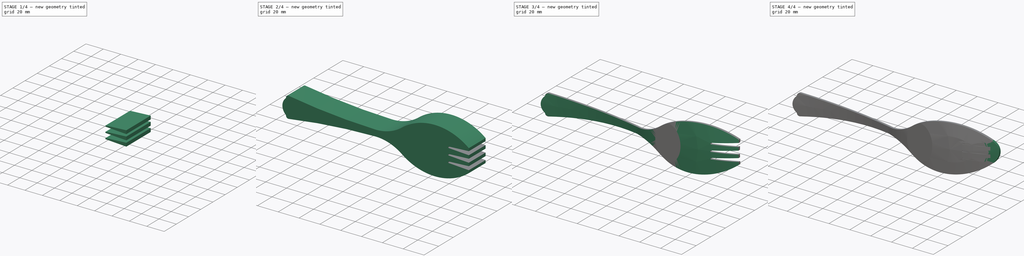
[diagram: build sequence overview — one tinted view per stage of 4, left to right]
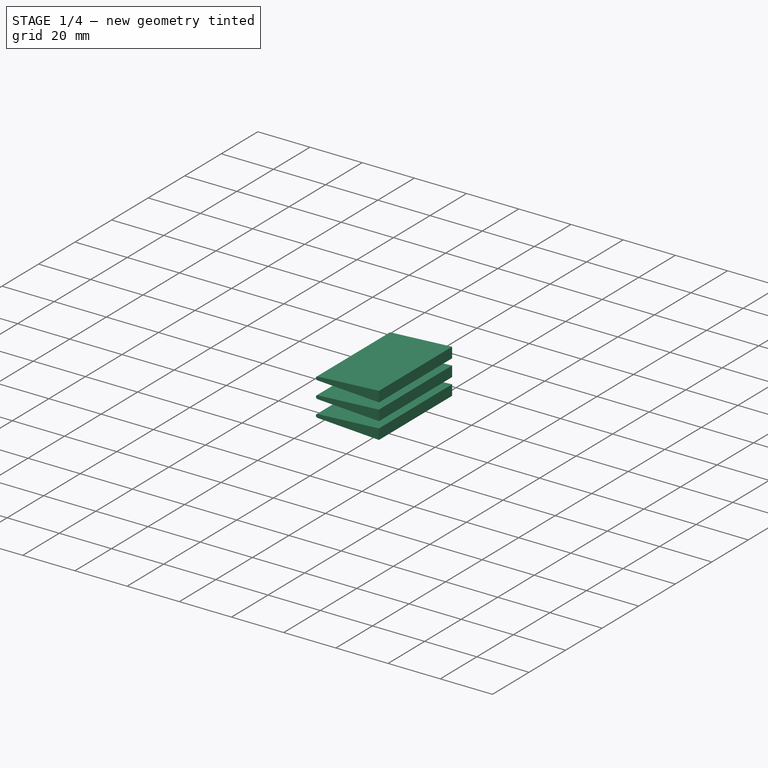
[diagram: stage 1 of 4 — iso view after this stage's code; geometry added in this stage tinted green]
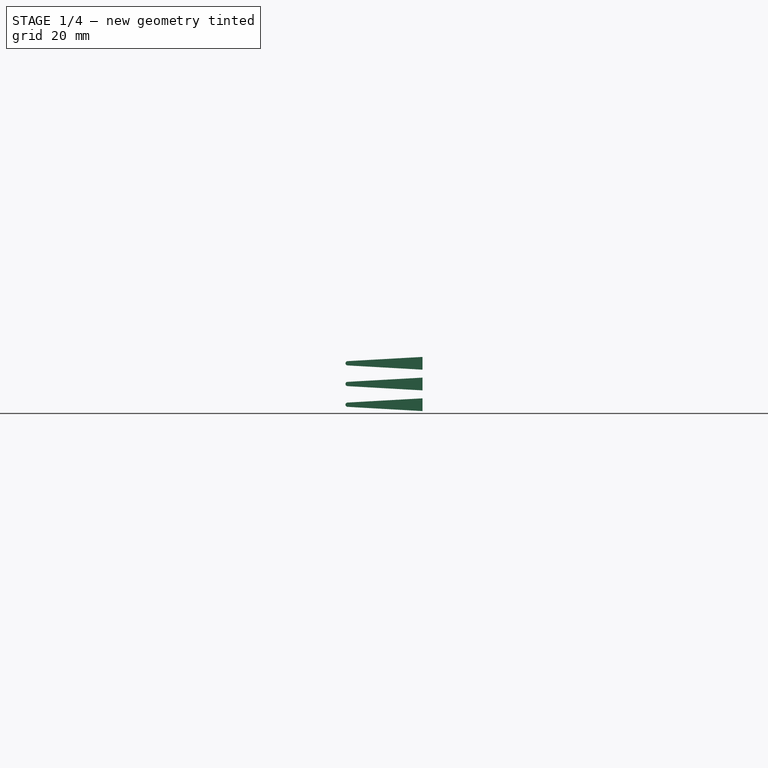
[diagram: stage 1 of 4 — front view after this stage's code; geometry added in this stage tinted green]
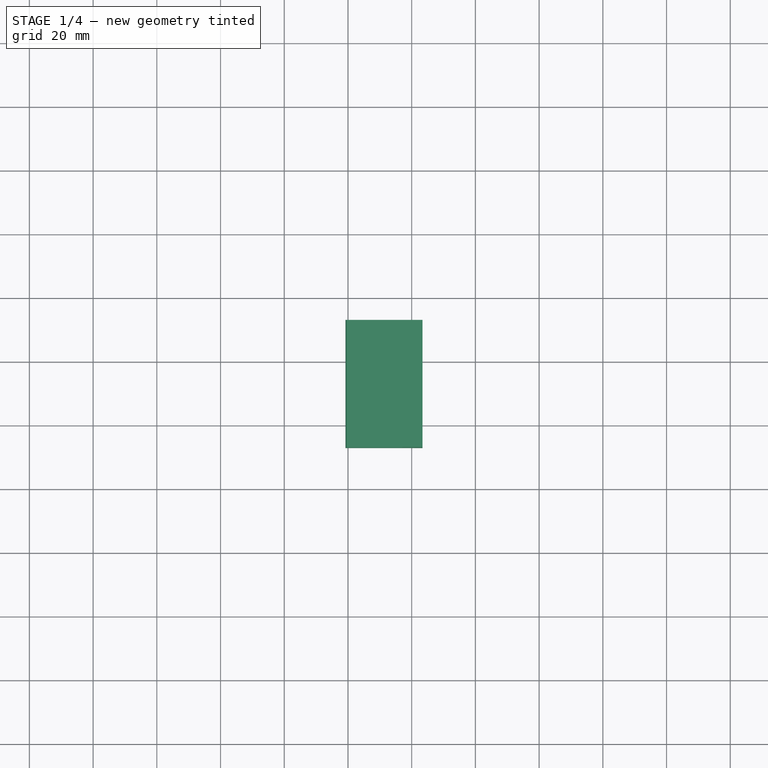
[diagram: stage 1 of 4 — top view after this stage's code; geometry added in this stage tinted green]
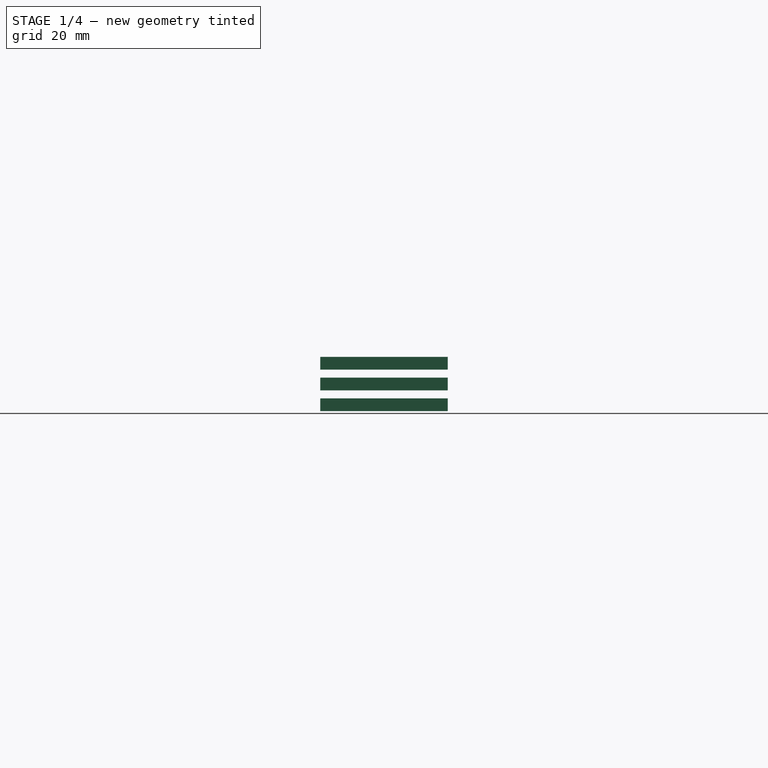
[diagram: stage 1 of 4 — right view after this stage's code; geometry added in this stage tinted green]
FCSTD DOCUMENT  (FreeCAD 0.20R29410 (Git))
Label: spoon
License: All rights reserved
LicenseURL: http://en.wikipedia.org/wiki/All_rights_reserved
objects: Part::Cut×6, Sketcher::SketchObject×4, Part::FeaturePython×3, Part::Extrusion×2, Part::Part2DObjectPython×1, Part::Loft×1, Part::Box×1, App::Part×1
note: 18 computed .brp shape members not serialized (recipe doc carries the construction recipe); baked Part::Feature solids carry a one-line shape summary decoded from their .brp

FEATURE [Sketcher::SketchObject] Sketch015  label="frontMid"
  FullyConstrained = false
  sketch-geometry (4):
    g0: GeomPoint X=135 Y=0 Z=0
    g1: ArcOfCircle CenterX=51.5539 CenterY=-176.213 CenterZ=0 NormalX=0 NormalY=0 NormalZ=1 AngleXU=0 Radius=185.066 StartAngle=1.36639 EndAngle=1.88135
    g2: ArcOfCircle CenterX=122.916 CenterY=99.2672 CenterZ=0 NormalX=0 NormalY=0 NormalZ=1 AngleXU=0 Radius=100 StartAngle=4.38846 EndAngle=5.60967
    g3: ArcOfCircle CenterX=85.6574 CenterY=-11.7032 CenterZ=0 NormalX=0 NormalY=0 NormalZ=1 AngleXU=0 Radius=17.0584 StartAngle=1.24687 EndAngle=1.36639
  constraints (10):
    c: PointOnObject(g0,g-1)
    c: PointOnObject(g1,g-1)
    c: DistanceX(g1) = -5
    c: DistanceY(g1) = 5
    c: DistanceX(g1,g1) = 94.12
    c: DistanceX(g1,g0) = 140
    c: PointOnObject(g0,g2)
    c: Radius(g2) = 100
    c: Tangent(g3,g2) = 1.5708
    c: Tangent(g3,g1) = -1.5708
FEATURE [Sketcher::SketchObject] Sketch016  label="back"
  AttachmentOffset = pos=(0,0,-35) rot=(0,0,1;0rad)
  ExternalGeometry = -> [Sketch015]
  FullyConstrained = false
  MapMode = 2
  Placement = pos=(0,0,-35) rot=(0,0,1;0rad)
  Support = -> [Sketch015]
  sketch-geometry (19):
    g0-g9: Circle x10 (B-spline internal-alignment scaffolding for g10; pole/knot coordinates omitted)
    g10: BSplineCurve PolesCount=10 KnotsCount=8 Degree=3 IsPeriodic=0
    g11-g18: GeomPoint x8 (B-spline internal-alignment scaffolding for g10; pole/knot coordinates omitted)
  constraints (3):
    c: Equal(g0, g1-g9) x9
    c: InternalAlignment(g0-g9 -> g10) x10
    c: InternalAlignment(g11-g18 -> g10) x8
FEATURE [Part::Part2DObjectPython] Clone2D001  label="front"  # Draft 2D object (typed FeaturePython)
  Fuse = false
  Objects = -> [Sketch016]
  Placement = pos=(0,0,35) rot=(0,0,1;0rad)
  Scale = (1,1,1)
FEATURE [Part::Loft] Loft001  label="Front"
  Closed = false
  MaxDegree = 5
  Ruled = false
  Sections = -> [Clone2D001,Sketch015,Sketch016]
  Solid = true
FEATURE [Sketcher::SketchObject] Sketch017  label="top"
  FullyConstrained = false
  MapMode = 5
  Placement = pos=(0,0,0) rot=(1,0,0;1.5708rad)
  sketch-geometry (14):
    g0: ArcOfCircle CenterX=97.8491 CenterY=-602.934 CenterZ=0 NormalX=0 NormalY=0 NormalZ=1 AngleXU=0 Radius=600 StartAngle=1.58563 EndAngle=1.72442
    g1: ArcOfCircle CenterX=97.8491 CenterY=602.934 CenterZ=0 NormalX=0 NormalY=0 NormalZ=1 AngleXU=0 Radius=600 StartAngle=4.55877 EndAngle=4.69755
    g2: GeomPoint X=88.9486 Y=0 Z=0
    g3: ArcOfCircle CenterX=5.70263 CenterY=7.83467 CenterZ=0 NormalX=0 NormalY=0 NormalZ=1 AngleXU=0 Radius=2.19113 StartAngle=1.41717 EndAngle=3.00995
    g4: ArcOfCircle CenterX=5.70263 CenterY=-7.83467 CenterZ=0 NormalX=0 NormalY=0 NormalZ=1 AngleXU=0 Radius=2.19113 StartAngle=3.27323 EndAngle=4.86601
    g5: ArcOfCircle CenterX=1.35828 CenterY=8.40989 CenterZ=0 NormalX=0 NormalY=0 NormalZ=1 AngleXU=0 Radius=2.19113 StartAngle=5.48444 EndAngle=6.15154
    g6: ArcOfCircle CenterX=1.35828 CenterY=-8.40989 CenterZ=0 NormalX=0 NormalY=0 NormalZ=1 AngleXU=0 Radius=2.19113 StartAngle=0.131641 EndAngle=0.798742
    g7: ArcOfCircle CenterX=9.54667 CenterY=-2.59e-14 CenterZ=0 NormalX=0 NormalY=0 NormalZ=1 AngleXU=0 Radius=9.54667 StartAngle=2.34285 EndAngle=3.94033
    g8: ArcOfCircle CenterX=89.5623 CenterY=44.3668 CenterZ=0 NormalX=0 NormalY=0 NormalZ=1 AngleXU=0 Radius=41.3714 StartAngle=4.69755 EndAngle=5.36719
    g9: ArcOfCircle CenterX=89.5623 CenterY=-44.3668 CenterZ=0 NormalX=0 NormalY=0 NormalZ=1 AngleXU=0 Radius=41.3714 StartAngle=0.916 EndAngle=1.58563
    g10: ArcOfCircle CenterX=171.537 CenterY=6.77e-14 CenterZ=0 NormalX=0 NormalY=0 NormalZ=1 AngleXU=0 Radius=13.1008 StartAngle=5.41476 EndAngle=7.15161
    g11: GeomPoint X=180 Y=6.92e-14 Z=0
    g12: ArcOfCircle CenterX=146.416 CenterY=-29.6808 CenterZ=0 NormalX=0 NormalY=0 NormalZ=1 AngleXU=0 Radius=51.985 StartAngle=0.868426 EndAngle=2.22559
    g13: ArcOfCircle CenterX=146.416 CenterY=29.6808 CenterZ=0 NormalX=0 NormalY=0 NormalZ=1 AngleXU=0 Radius=51.985 StartAngle=4.05759 EndAngle=5.41476
  constraints (31):
    c: Symmetric(g1,g0,g-1)
    c: DistanceY(g0,g1) = 20
    c: PointOnObject(g2,g-1)
    c: Vertical(g1,g0)
    c: DistanceY(g1) = 3
    c: Symmetric(g1,g0,g2)
    c: Radius(g0) = 600
    c: Radius(g1) = 600
    c: Tangent(g3,g1) = 1.5708
    c: Tangent(g0,g4) = 1.5708
    c: Equal(g3,g4)
    c: Tangent(g5,g3) = 1.5708
    c: Vertical(g4,g3)
    c: Tangent(g6,g4) = 1.5708
    c: PointOnObject(g-1,g7)
    c: Tangent(g6,g7) = 1.5708
    c: Tangent(g5,g7) = 1.5708
    c: Equal(g3,g5)
    c: Equal(g5,g6)
    c: Equal(g8,g9)
    c: Vertical(g8,g9)
    c: Vertical(g10,g10)
    c: DistanceY(g10,g10) = 20
    c: Symmetric(g10,g10,g11)
    c: Tangent(g8,g1) = -1.5708
    c: Tangent(g9,g0) = -1.5708
    c: DistanceX(g11) = 180
    c: Tangent(g10,g12) = -1.5708
    c: Tangent(g10,g13) = -1.5708
    c: Tangent(g13,g9) = 1.5708
    c: Tangent(g12,g8) = 1.5708
FEATURE [Part::Extrusion] Extrude  label="topExtruded"
  Base = -> Sketch017
  Dir = (0,-1,-2e-16)
  DirMode = 2
  FaceMakerClass = Part::FaceMakerBullseye
  LengthFwd = 23
  LengthRev = 0
  Reversed = true
  Solid = true
  Symmetric = false
FEATURE [Sketcher::SketchObject] Sketch
  ExternalGeometry = -> [Extrude]
  FullyConstrained = false
  MapMode = 5
  Placement = pos=(0,23,5.1e-15) rot=(0,0.707107,0.707107;3.14159rad)
  Support = -> [Extrude]
  sketch-geometry (5):
    g0: GeomPoint X=-177.986 Y=-6.245 Z=0
    g1: LineSegment StartX=-159.848 StartY=-2.89142 StartZ=0 EndX=-183.399 EndY=-1.56035 EndZ=0
    g2: ArcOfCircle CenterX=-159.886 CenterY=-3.56035 CenterZ=0 NormalX=0 NormalY=0 NormalZ=1 AngleXU=0 Radius=0.67 StartAngle=4.76885 EndAngle=7.79752
    g3: LineSegment StartX=-159.848 StartY=-4.22929 StartZ=0 EndX=-183.399 EndY=-5.56035 EndZ=0
    g4: LineSegment StartX=-183.399 StartY=-1.56035 StartZ=0 EndX=-183.399 EndY=-5.56035 EndZ=0
  constraints (9):
    c: Tangent(g2,g1) = -1.5708
    c: Radius(g2) = 0.67
    c: Tangent(g2,g3) = 1.5708
    c: Coincident(g4,g1)
    c: Coincident(g4,g3)
    c: Equal(g1,g3)
    c: PointOnObject(g3,g-4)
    c: DistanceY(g4,g4) = 4
    c: Vertical(g4)
FEATURE [Part::Extrusion] Extrude001
  Base = -> Sketch
  Dir = (0,1,2e-16)
  DirMode = 2
  FaceMakerClass = Part::FaceMakerBullseye
  LengthFwd = 40
  LengthRev = 0
  Placement = pos=(-1,-10,0) rot=(0,0,1;0rad)
  Reversed = true
  Solid = true
  Symmetric = true
FEATURE [Part::FeaturePython] Array  # Draft array (typed FeaturePython)
  AlwaysSyncPlacement = false
  Angle = 360
  ArrayType = 0
  Axis = (0,0,1)
  Base = -> Extrude001
  Center = (0,0,0)
  Count = 3
  ExpandArray = false
  Fuse = true
  IntervalAxis = (0,0,0)
  IntervalX = (100,0,0)
  IntervalY = (0,100,0)
  IntervalZ = (0,0,6.5)
  NumberCircles = 3
  NumberPolar = 5
  NumberX = 1
  NumberY = 1
  NumberZ = 3
  Placement = pos=(1,0,-3) rot=(0,0,1;0rad)
  PlacementList = 3 placements: arithmetic series from (-1,-10,0) step (0,0,6.5) to (-1,-10,13)
  RadialDistance = 50
  ScaleList = (3) [(1,1,1),(1,1,1),(1,1,1)]
  Symmetry = 1
  TangentialDistance = 25
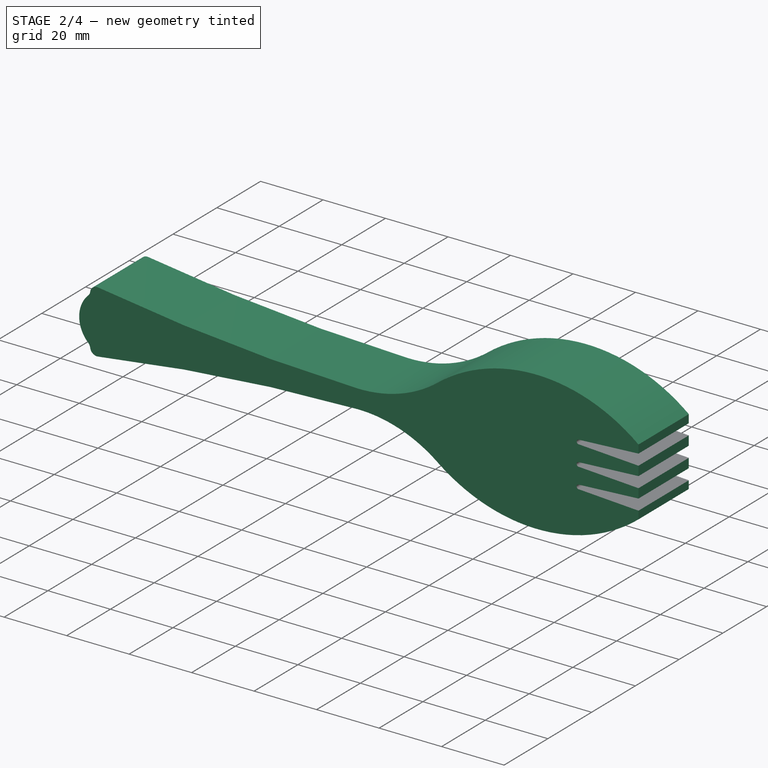
[diagram: stage 2 of 4 — iso view after this stage's code; geometry added in this stage tinted green]
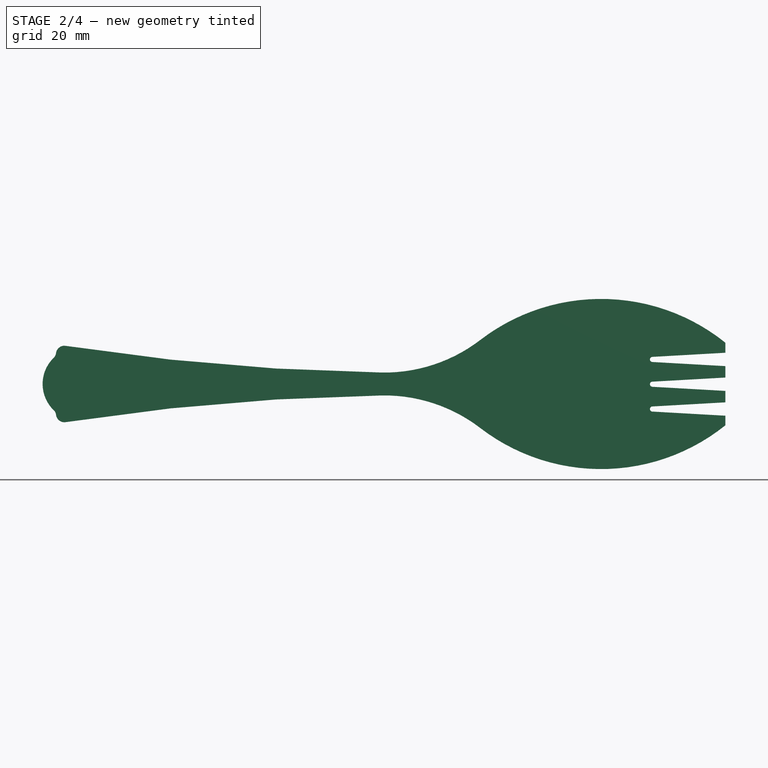
[diagram: stage 2 of 4 — front view after this stage's code; geometry added in this stage tinted green]
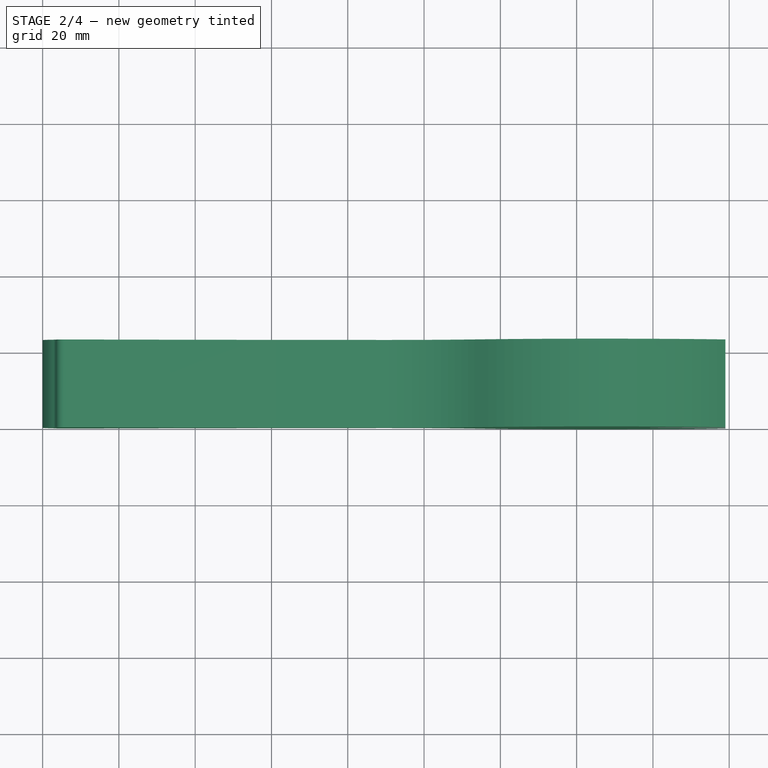
[diagram: stage 2 of 4 — top view after this stage's code; geometry added in this stage tinted green]
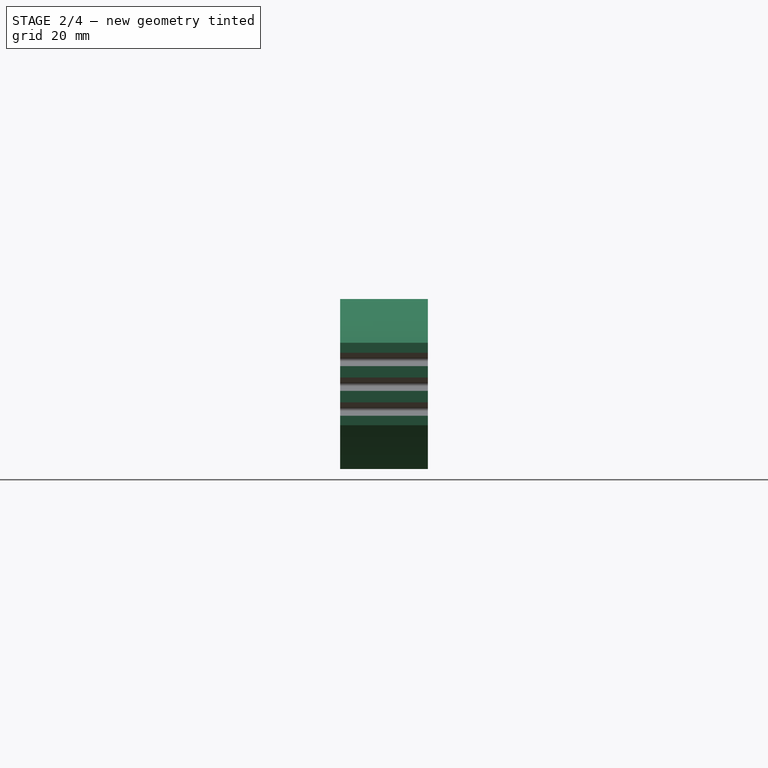
[diagram: stage 2 of 4 — right view after this stage's code; geometry added in this stage tinted green]
FEATURE [Part::Box] Box  label="Cube"
  AttacherType = Attacher::AttachEngine3D
  Height = 23
  Length = 10
  Placement = pos=(179,-5,-12) rot=(0,0,1;0rad)
  Width = 31
FEATURE [App::Part] Part001
  Group = -> [Clone2D001,Loft001,Sketch015,Sketch017,Sketch016,Extrude,Extrude001,Sketch,Cut001,Cut,Clone,Array,Box]
  Origin = -> Origin001
FEATURE [Part::Cut] Cut002
  Base = -> Extrude
  Refine = true
  Tool = -> Array
FEATURE [Part::Cut] Cut003  label="spoorkshape"
  Base = -> Cut002
  Refine = true
  Tool = -> Box
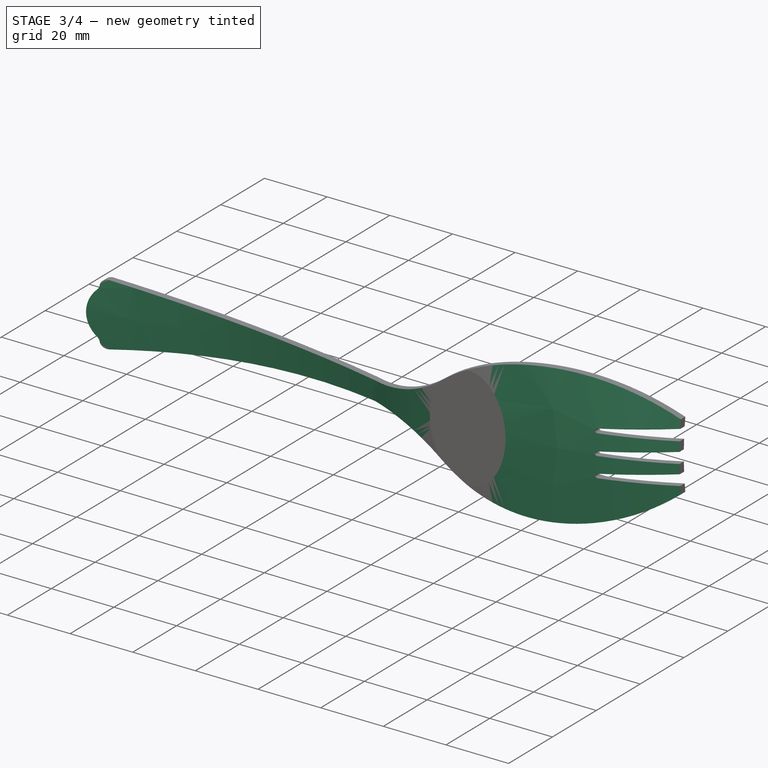
[diagram: stage 3 of 4 — iso view after this stage's code; geometry added in this stage tinted green]
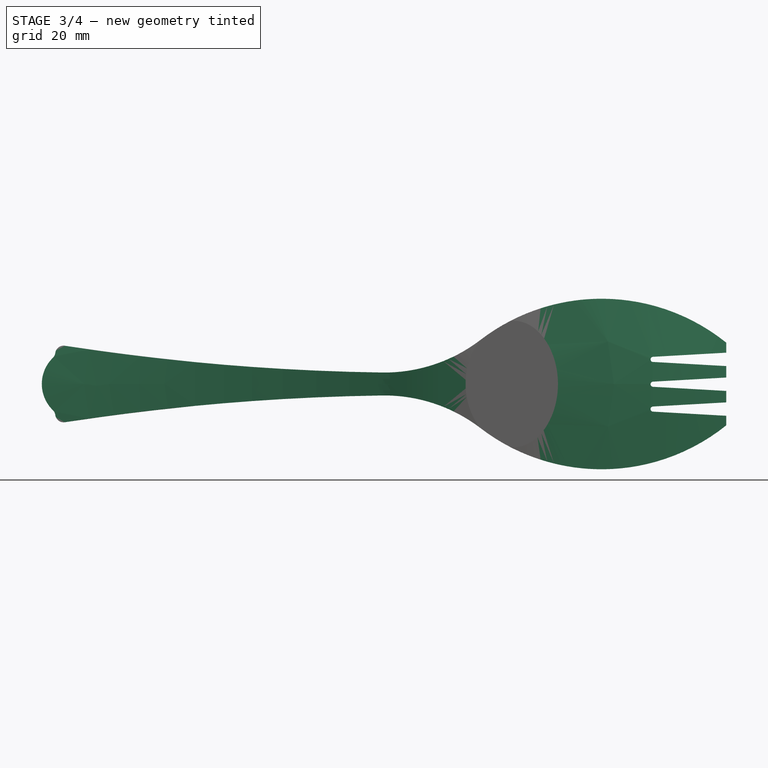
[diagram: stage 3 of 4 — front view after this stage's code; geometry added in this stage tinted green]
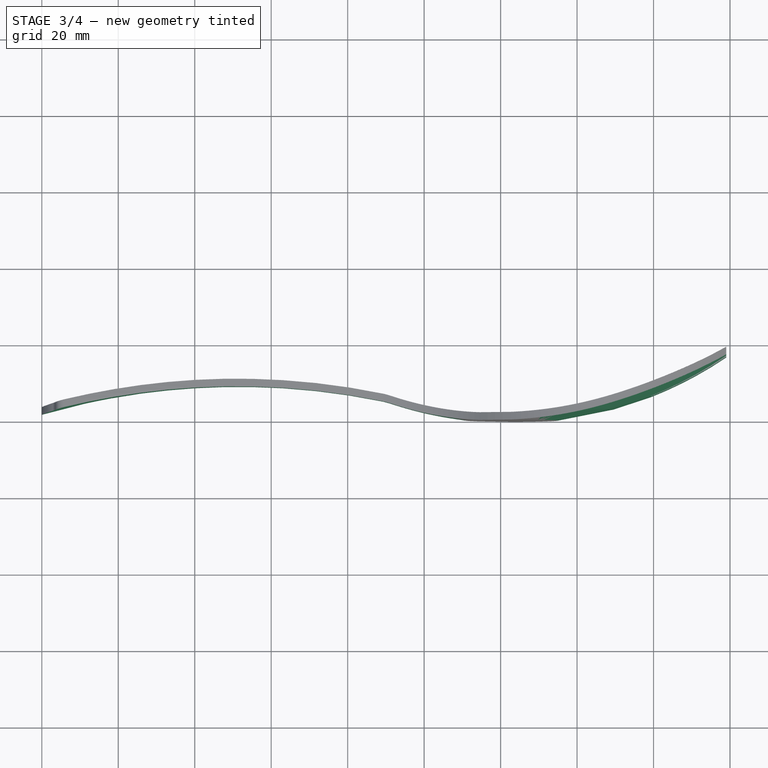
[diagram: stage 3 of 4 — top view after this stage's code; geometry added in this stage tinted green]
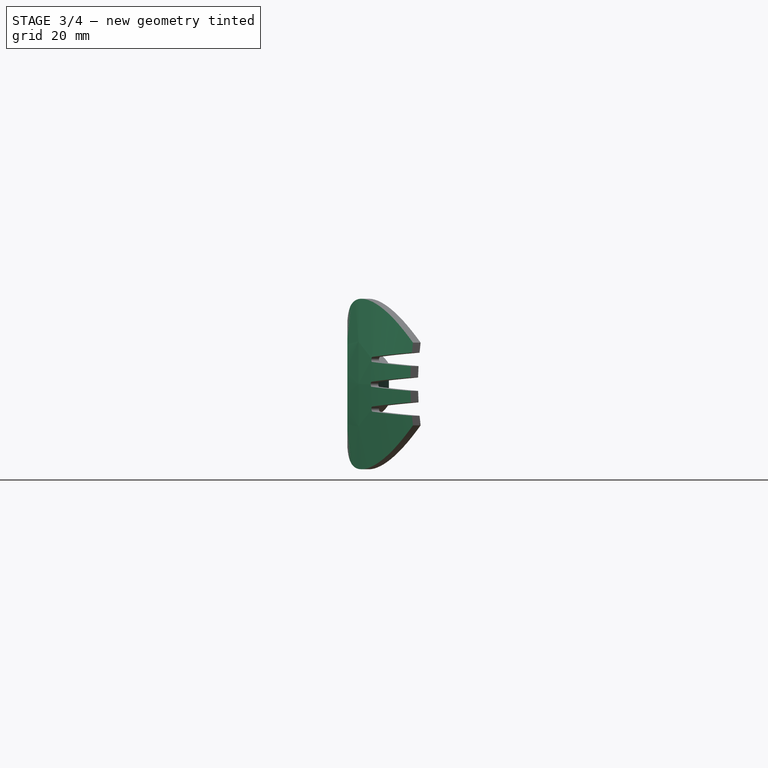
[diagram: stage 3 of 4 — right view after this stage's code; geometry added in this stage tinted green]
FEATURE [Part::Cut] Cut004
  Base = -> Cut003
  Refine = true
  Tool = -> Loft001
FEATURE [Part::FeaturePython] Clone001  label="Cut005"  # Draft clone (typed FeaturePython)
  AttacherType = Attacher::AttachEngine3D
  Fuse = false
  Objects = -> [Cut004]
  Placement = pos=(0,2,0) rot=(0,0,1;0rad)
  Scale = (1,1,1)
FEATURE [Part::Cut] Cut005  label="Cut006"
  Base = -> Cut004
  Refine = true
  Tool = -> Clone001
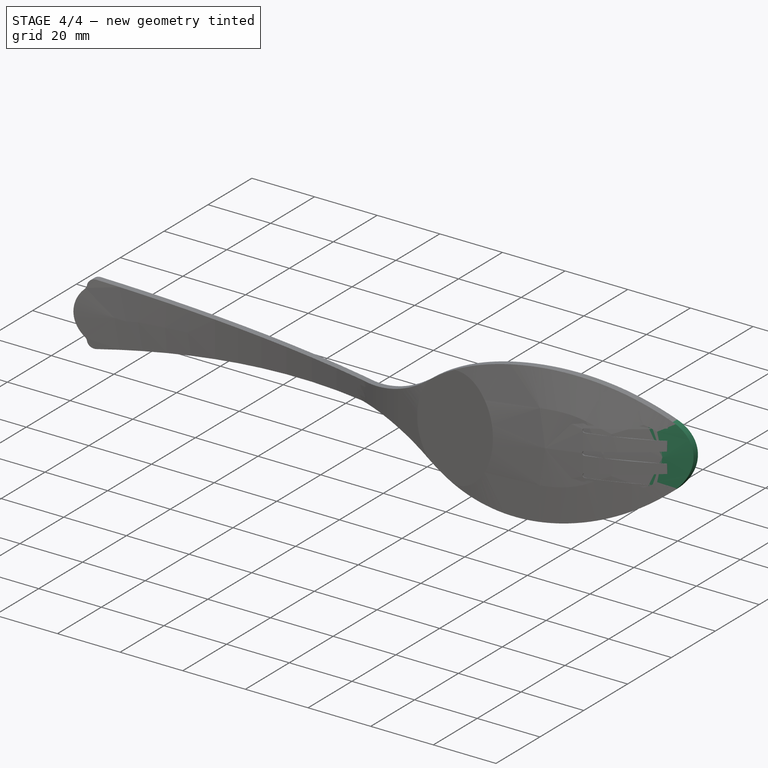
[diagram: stage 4 of 4 — iso view after this stage's code; geometry added in this stage tinted green]
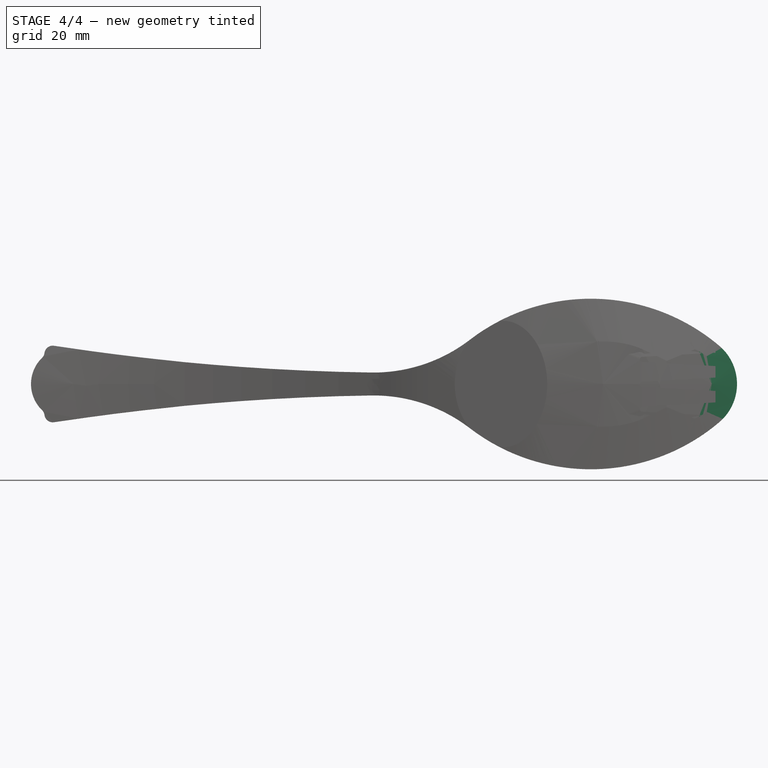
[diagram: stage 4 of 4 — front view after this stage's code; geometry added in this stage tinted green]
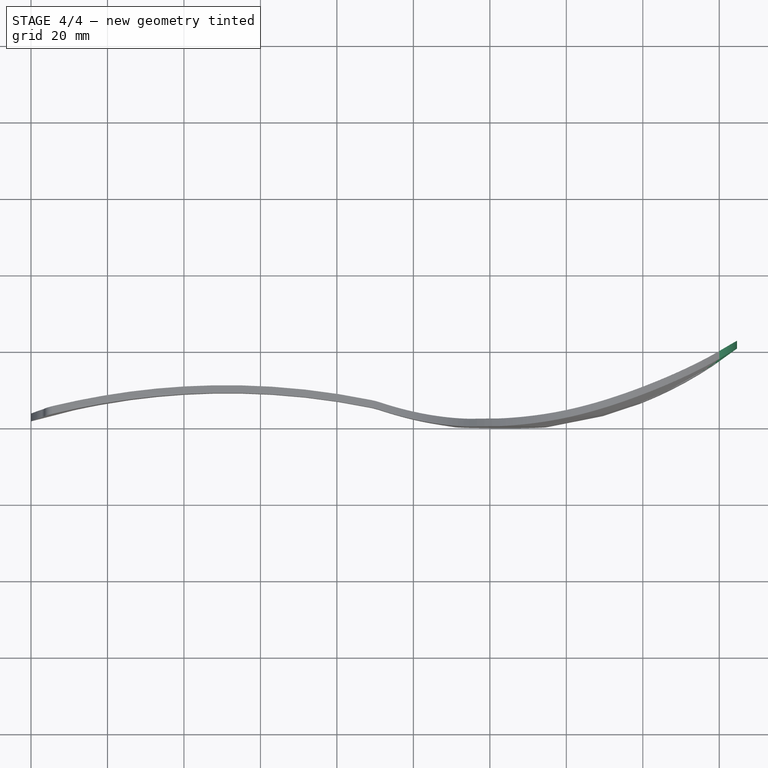
[diagram: stage 4 of 4 — top view after this stage's code; geometry added in this stage tinted green]
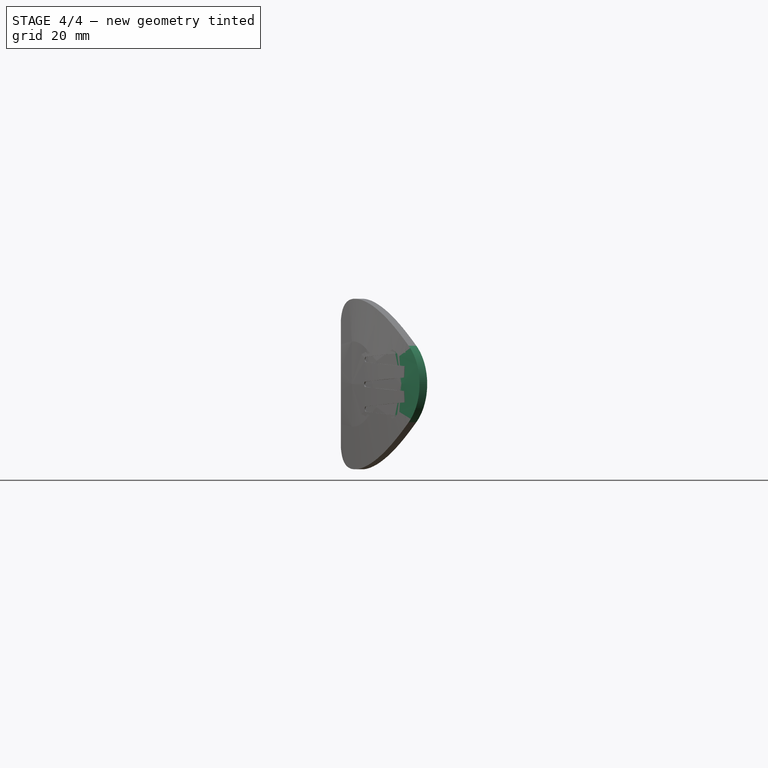
[diagram: stage 4 of 4 — right view after this stage's code; geometry added in this stage tinted green]
FEATURE [Part::Cut] Cut
  Base = -> Extrude
  Refine = true
  Tool = -> Loft001
FEATURE [Part::FeaturePython] Clone  label="Cut001"  # Draft clone (typed FeaturePython)
  AttacherType = Attacher::AttachEngine3D
  Fuse = false
  Objects = -> [Cut]
  Placement = pos=(0,2,0) rot=(0,0,1;0rad)
  Scale = (1,1,1)
FEATURE [Part::Cut] Cut001  label="spoonFinal"
  Base = -> Cut
  Refine = true
  Tool = -> Clone
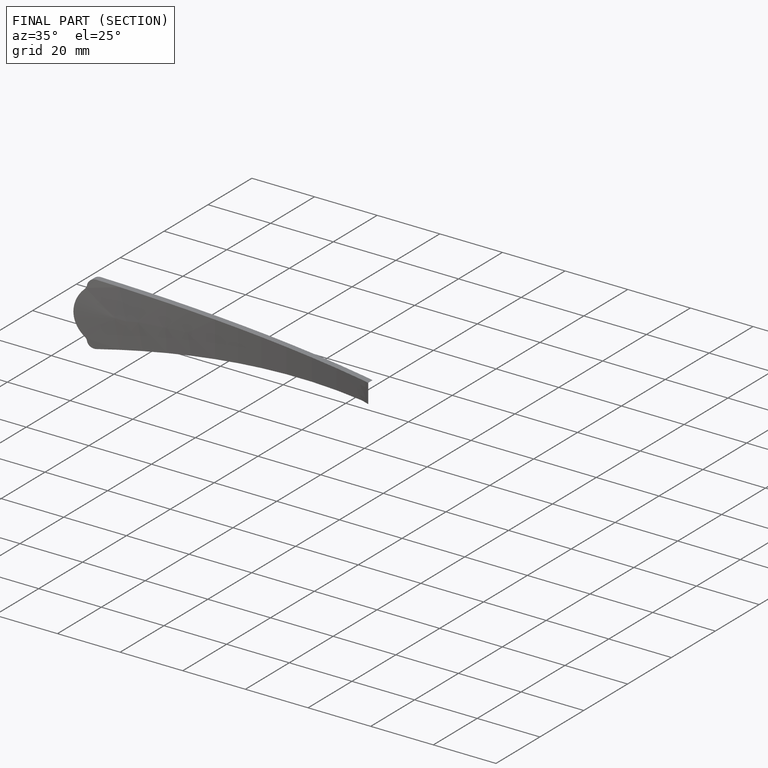
[diagram: finished part — half-section view (interior)]
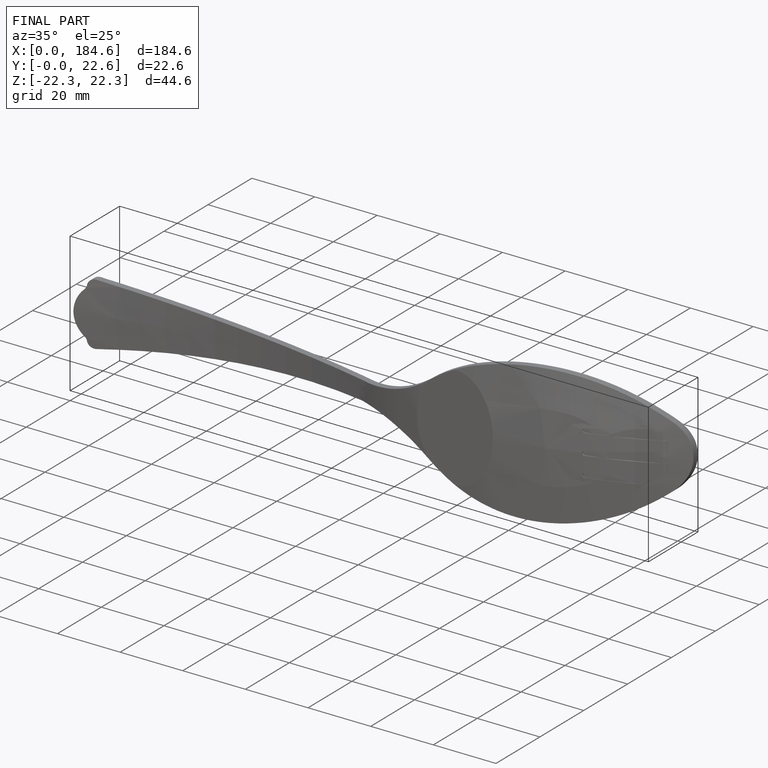
[diagram: finished part — iso view with bounding-box wireframe]
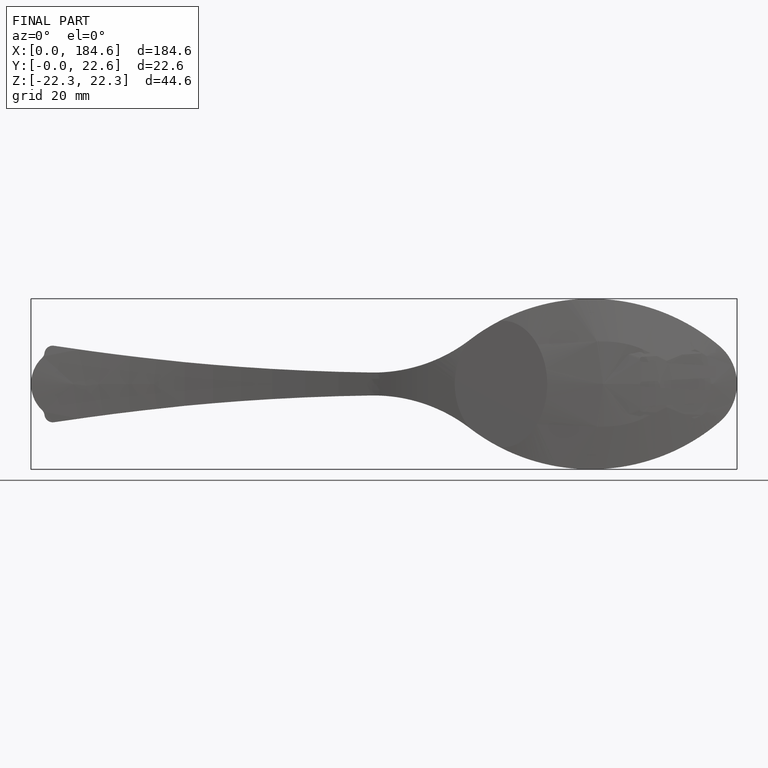
[diagram: finished part — front view with bounding-box wireframe]
